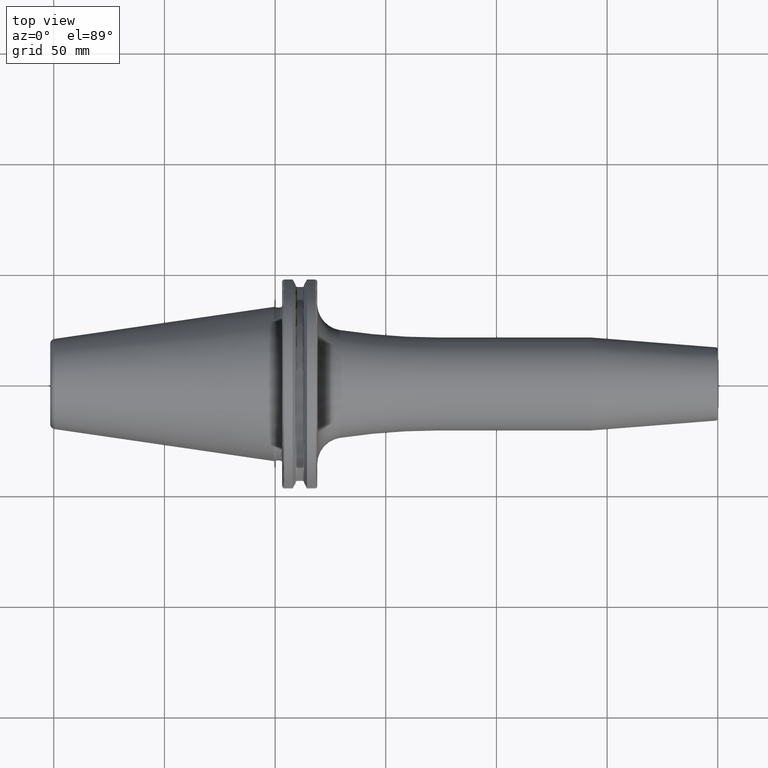
[diagram: clean part render]
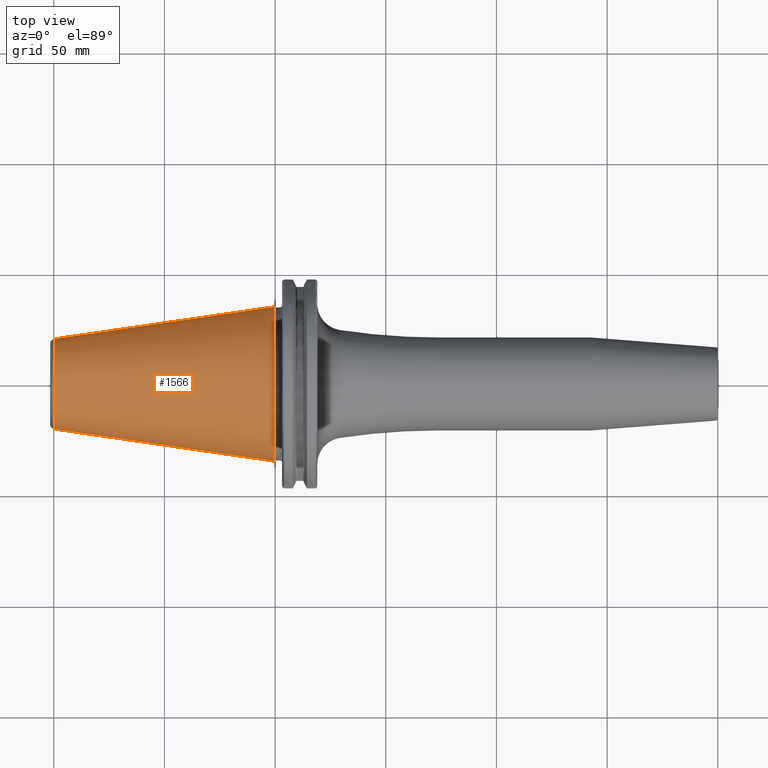
[diagram: same view with one face highlighted and labeled with its STEP entity id]
A machine part, top view. The second image highlights one B-rep face of the part: STEP entity #1566.
In plain terms, the highlighted conical surface has half-angle 8.298 deg.
Its self-contained STEP definition (entity closure, byte-faithful):
#37=CARTESIAN_POINT('',(-9.967471700563E1,0.E0,0.E0));
#38=DIRECTION('',(1.E0,0.E0,0.E0));
#39=DIRECTION('',(0.E0,1.E0,0.E0));
#40=AXIS2_PLACEMENT_3D('',#37,#38,#39);
#42=CARTESIAN_POINT('',(-4.896823332305E-1,0.E0,0.E0));
#43=DIRECTION('',(1.E0,0.E0,0.E0));
#44=DIRECTION('',(0.E0,1.E0,0.E0));
#45=AXIS2_PLACEMENT_3D('',#42,#43,#44);
#47=DIRECTION('',(-9.895312636440E-1,-1.443186691705E-1,0.E0));
#48=VECTOR('',#47,1.002343617797E2);
#49=CARTESIAN_POINT('',(-4.896823332305E-1,3.485358204157E1,0.E0));
#50=LINE('',#49,#48);
#51=DIRECTION('',(-9.895312636440E-1,1.443186691705E-1,0.E0));
#52=VECTOR('',#51,1.002343617797E2);
#53=CARTESIAN_POINT('',(-4.896823332305E-1,-3.485358204157E1,0.E0));
#54=LINE('',#53,#52);
#1244=CARTESIAN_POINT('',(-9.967471700563E1,2.038789234437E1,0.E0));
#1246=VERTEX_POINT('',#1244);
#1248=CARTESIAN_POINT('',(-9.967471700563E1,-2.038789234437E1,0.E0));
#1250=VERTEX_POINT('',#1248);
#1312=CARTESIAN_POINT('',(-4.896823332305E-1,3.485358204157E1,0.E0));
#1313=VERTEX_POINT('',#1312);
#1314=CARTESIAN_POINT('',(-4.896823332305E-1,-3.485358204157E1,0.E0));
#1315=VERTEX_POINT('',#1314);
#1552=CARTESIAN_POINT('',(-5.008219966943E1,0.E0,0.E0));
#1553=DIRECTION('',(1.E0,0.E0,0.E0));
#1554=DIRECTION('',(0.E0,-1.E0,0.E0));
#1555=AXIS2_PLACEMENT_3D('',#1552,#1553,#1554);
#1556=CONICAL_SURFACE('',#1555,2.762073719297E1,8.297826828206E0);
#1558=ORIENTED_EDGE('',*,*,#1557,.F.);
#1560=ORIENTED_EDGE('',*,*,#1559,.T.);
#1562=ORIENTED_EDGE('',*,*,#1561,.T.);
#1563=ORIENTED_EDGE('',*,*,#1545,.F.);
#1564=EDGE_LOOP('',(#1558,#1560,#1562,#1563));
#1565=FACE_OUTER_BOUND('',#1564,.F.);
#1566=ADVANCED_FACE('',(#1565),#1556,.T.);
#41=CIRCLE('',#40,2.038789234437E1);
#46=CIRCLE('',#45,3.485358204157E1);
#1545=EDGE_CURVE('',#1246,#1250,#41,.T.);
#1557=EDGE_CURVE('',#1313,#1246,#50,.T.);
#1559=EDGE_CURVE('',#1313,#1315,#46,.T.);
#1561=EDGE_CURVE('',#1315,#1250,#54,.T.);